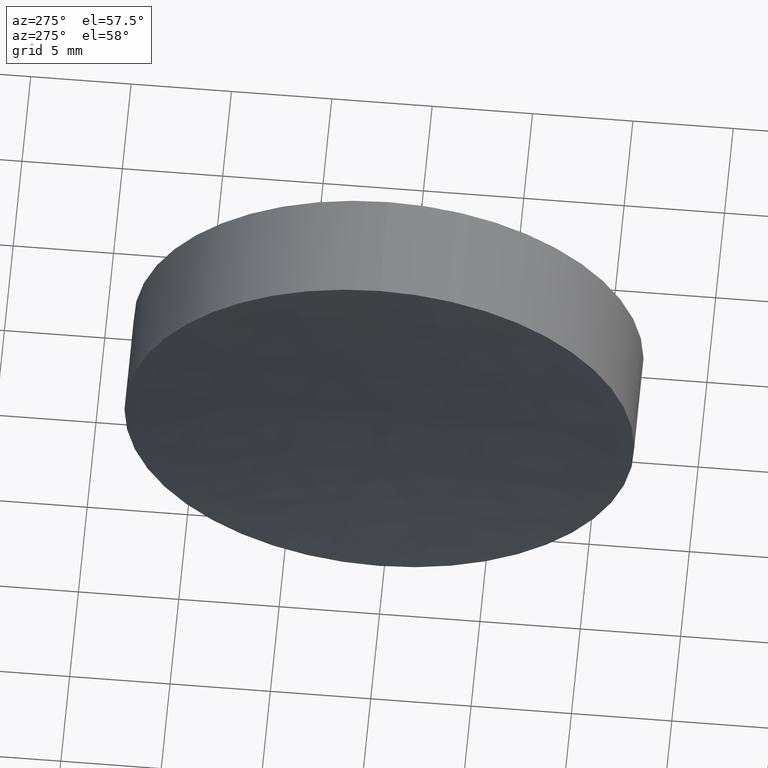
[diagram: clean part render]
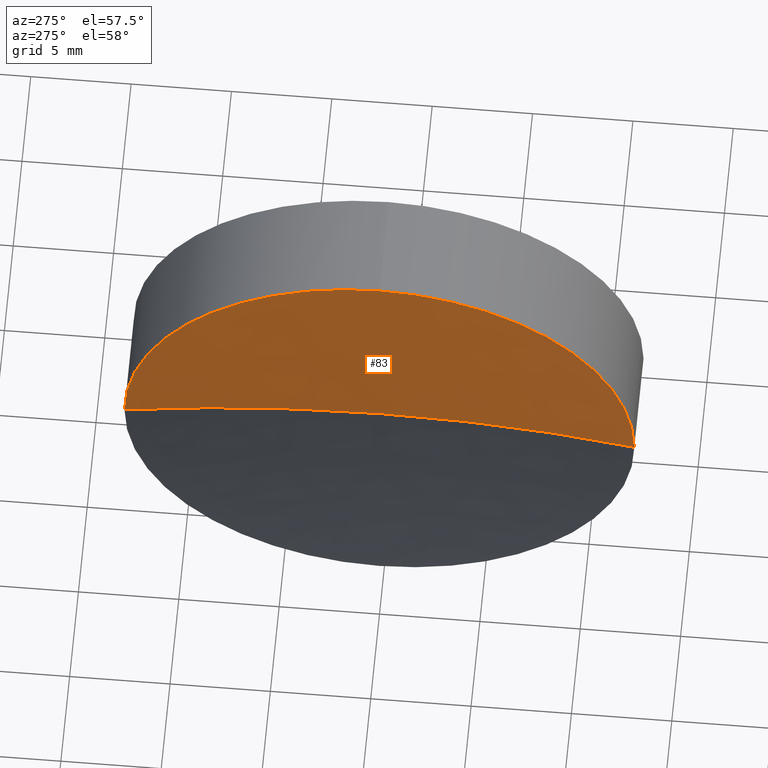
[diagram: same view with one face highlighted and labeled with its STEP entity id]
A machine part, auxiliary view. The second image highlights one B-rep face of the part: STEP entity #83.
In plain terms, the highlighted spherical surface has radius 92.6 mm.
Its self-contained STEP definition (entity closure, byte-faithful):
#4 = CARTESIAN_POINT ( 'NONE',  ( 117.4776727839183900, 77.92260287298734100, 0.0000000000000000000 ) ) ;
#11 = EDGE_LOOP ( 'NONE', ( #81, #210, #183, #21 ) ) ;
#17 = EDGE_CURVE ( 'NONE', #141, #170, #18, .T. ) ;
#18 = CIRCLE ( 'NONE', #168, 92.59999999999999400 ) ;
#20 = DIRECTION ( 'NONE',  ( 0.0000000000000000000, 0.0000000000000000000, -1.000000000000000000 ) ) ;
#21 = ORIENTED_EDGE ( 'NONE', *, *, #181, .T. ) ;
#22 = CARTESIAN_POINT ( 'NONE',  ( 118.3527034462293300, 65.22260287298732400, 0.0000000000000000000 ) ) ;
#23 = SPHERICAL_SURFACE ( 'NONE', #28, 92.59999999999999400 ) ;
#28 = AXIS2_PLACEMENT_3D ( 'NONE', #88, #20, #116 ) ;
#29 = VERTEX_POINT ( 'NONE', #132 ) ;
#34 = DIRECTION ( 'NONE',  ( 0.0000000000000000000, 1.224646799147353200E-016, -1.000000000000000000 ) ) ;
#40 = EDGE_CURVE ( 'NONE', #141, #52, #180, .T. ) ;
#41 = CARTESIAN_POINT ( 'NONE',  ( 117.4776727839183900, 65.22260287298739500, 0.0000000000000000000 ) ) ;
#51 = DIRECTION ( 'NONE',  ( 0.0000000000000000000, 1.000000000000000000, 1.224646799147353000E-016 ) ) ;
#52 = VERTEX_POINT ( 'NONE', #203 ) ;
#77 = DIRECTION ( 'NONE',  ( -1.000000000000000000, -0.0000000000000000000, -0.0000000000000000000 ) ) ;
#81 = ORIENTED_EDGE ( 'NONE', *, *, #17, .F. ) ;
#83 = ADVANCED_FACE ( 'NONE', ( #90 ), #23, .F. ) ;
#85 = DIRECTION ( 'NONE',  ( 0.0000000000000000000, 0.0000000000000000000, 1.000000000000000000 ) ) ;
#88 = CARTESIAN_POINT ( 'NONE',  ( 25.75270344622933300, 65.22260287298732400, 0.0000000000000000000 ) ) ;
#90 = FACE_OUTER_BOUND ( 'NONE', #11, .T. ) ;
#100 = AXIS2_PLACEMENT_3D ( 'NONE', #204, #34, #51 ) ;
#102 = CIRCLE ( 'NONE', #198, 12.69999999999997400 ) ;
#112 = DIRECTION ( 'NONE',  ( 1.000000000000000000, 0.0000000000000000000, 0.0000000000000000000 ) ) ;
#116 = DIRECTION ( 'NONE',  ( 0.0000000000000000000, 1.000000000000000000, 0.0000000000000000000 ) ) ;
#132 = CARTESIAN_POINT ( 'NONE',  ( 117.4776727839183900, 65.22260287298739500, 12.69999999999997400 ) ) ;
#139 = DIRECTION ( 'NONE',  ( 0.0000000000000000000, 0.0000000000000000000, 1.000000000000000000 ) ) ;
#141 = VERTEX_POINT ( 'NONE', #22 ) ;
#148 = CARTESIAN_POINT ( 'NONE',  ( 25.75270344622933300, 65.22260287298732400, 0.0000000000000000000 ) ) ;
#157 = DIRECTION ( 'NONE',  ( -1.000000000000000000, -0.0000000000000000000, -0.0000000000000000000 ) ) ;
#168 = AXIS2_PLACEMENT_3D ( 'NONE', #148, #85, #112 ) ;
#170 = VERTEX_POINT ( 'NONE', #4 ) ;
#180 = CIRCLE ( 'NONE', #100, 92.60000000000000900 ) ;
#181 = EDGE_CURVE ( 'NONE', #29, #170, #102, .T. ) ;
#183 = ORIENTED_EDGE ( 'NONE', *, *, #197, .T. ) ;
#192 = CARTESIAN_POINT ( 'NONE',  ( 117.4776727839183900, 65.22260287298739500, 0.0000000000000000000 ) ) ;
#197 = EDGE_CURVE ( 'NONE', #52, #29, #205, .T. ) ;
#198 = AXIS2_PLACEMENT_3D ( 'NONE', #192, #77, #209 ) ;
#203 = CARTESIAN_POINT ( 'NONE',  ( 117.4776727839183900, 52.52260287298737800, -1.555301434917131700E-015 ) ) ;
#204 = CARTESIAN_POINT ( 'NONE',  ( 25.75270344622933300, 65.22260287298732400, 0.0000000000000000000 ) ) ;
#205 = CIRCLE ( 'NONE', #222, 12.69999999999997400 ) ;
#209 = DIRECTION ( 'NONE',  ( 0.0000000000000000000, 0.0000000000000000000, 1.000000000000000000 ) ) ;
#210 = ORIENTED_EDGE ( 'NONE', *, *, #40, .T. ) ;
#222 = AXIS2_PLACEMENT_3D ( 'NONE', #41, #157, #139 ) ;